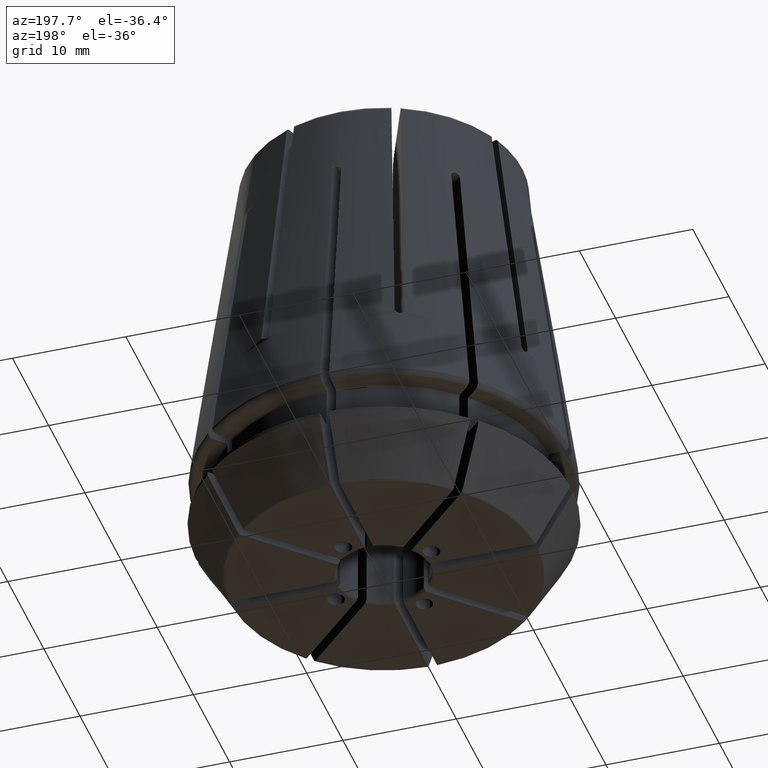
[diagram: clean part render]
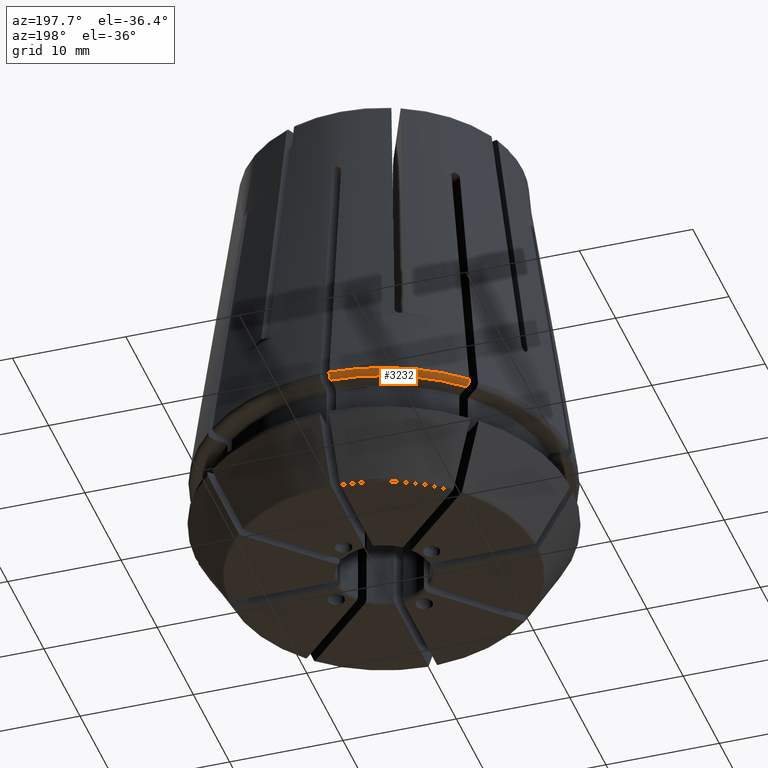
[diagram: same view with one face highlighted and labeled with its STEP entity id]
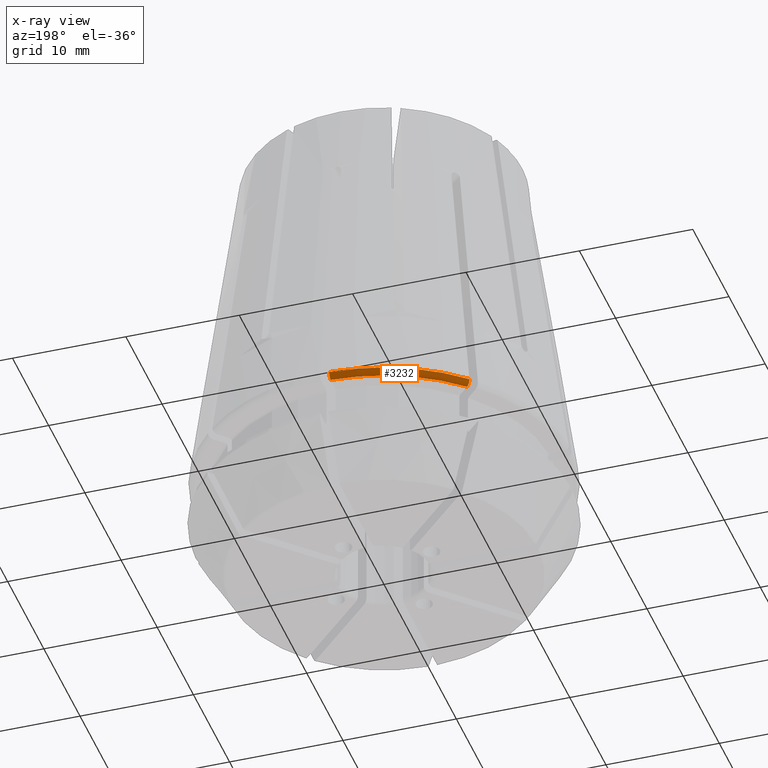
[diagram: x-ray of the same camera — body ghosted, the highlighted face saturated]
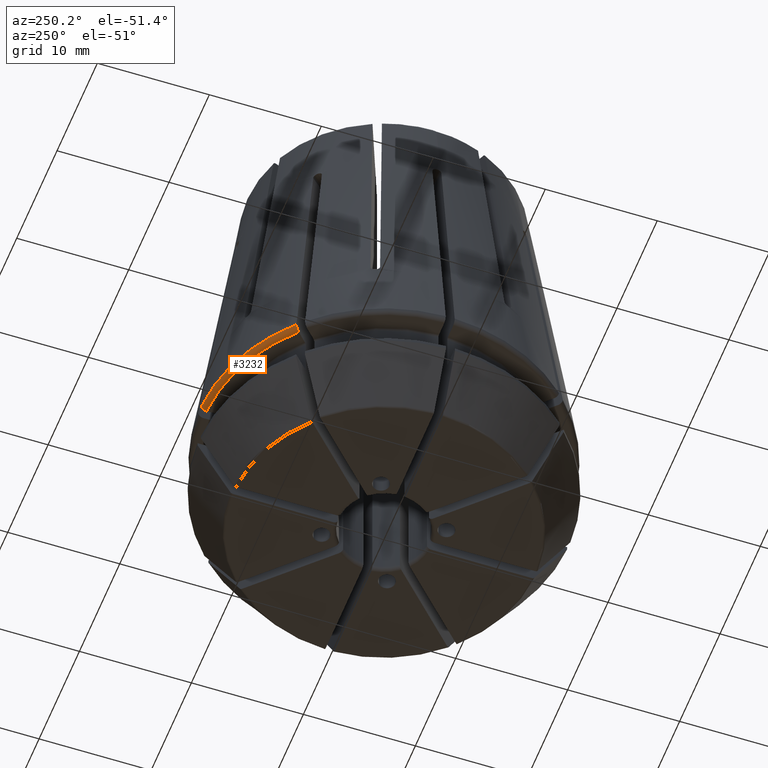
[diagram: same view with one face highlighted and labeled with its STEP entity id]
A machine part, auxiliary view. The second image highlights one B-rep face of the part: STEP entity #3232.
The next image is the same camera in x-ray: the body ghosted, the highlighted face saturated — about 0% of this face is hidden behind the body in this view.
A second angle (auxiliary view) of the same face is appended — the face is thin or edge-on in the first view.
In plain terms, the highlighted toroidal blend (fillet) surface has major radius 15.9823 mm and minor (blend) radius 0.45 mm.
Its self-contained STEP definition (entity closure, byte-faithful):
#512=B_SPLINE_CURVE_WITH_KNOTS('',3,(#5378,#5379,#5380,#5381),
 .UNSPECIFIED.,.F.,.F.,(4,4),(0.00076627681195305,0.00153231860263815),
 .UNSPECIFIED.);
#513=B_SPLINE_CURVE_WITH_KNOTS('',3,(#5382,#5383,#5384,#5385,#5386),
 .UNSPECIFIED.,.F.,.F.,(4,1,4),(0.000659496518193904,0.00104259664906279,
0.00142569677993167),.UNSPECIFIED.);
#867=ORIENTED_EDGE('',*,*,#1888,.T.);
#868=ORIENTED_EDGE('',*,*,#1903,.T.);
#869=ORIENTED_EDGE('',*,*,#1721,.F.);
#870=ORIENTED_EDGE('',*,*,#1904,.F.);
#1721=EDGE_CURVE('',#2253,#2254,#2589,.T.);
#1888=EDGE_CURVE('',#2397,#2395,#2637,.T.);
#1903=EDGE_CURVE('',#2395,#2254,#512,.T.);
#1904=EDGE_CURVE('',#2397,#2253,#513,.T.);
#2253=VERTEX_POINT('',#4761);
#2254=VERTEX_POINT('',#4763);
#2395=VERTEX_POINT('',#5334);
#2397=VERTEX_POINT('',#5337);
#2589=CIRCLE('',#3409,16.4279548476843);
#2637=CIRCLE('',#3478,15.9823342167505);
#2791=EDGE_LOOP('',(#867,#868,#869,#870));
#2979=FACE_BOUND('',#2791,.T.);
#3147=TOROIDAL_SURFACE('',#3488,15.9823342167505,0.45);
#3232=ADVANCED_FACE('',(#2979),#3147,.T.);
#3409=AXIS2_PLACEMENT_3D('',#4762,#3785,#3786);
#3478=AXIS2_PLACEMENT_3D('',#5336,#3972,#3973);
#3488=AXIS2_PLACEMENT_3D('',#5377,#3997,#3998);
#3785=DIRECTION('',(0.,0.,1.));
#3786=DIRECTION('',(1.,0.,0.));
#3972=DIRECTION('',(0.,0.,1.));
#3973=DIRECTION('',(1.,0.,0.));
#3997=DIRECTION('',(0.,0.,1.));
#3998=DIRECTION('',(1.,0.,0.));
#4761=CARTESIAN_POINT('',(-0.399999999999998,16.4230843777152,0.512627895432021));
#4762=CARTESIAN_POINT('',(0.,0.,0.512627895432022));
#4763=CARTESIAN_POINT('',(-11.3300316190066,11.8957170439559,0.512627895432021));
#5334=CARTESIAN_POINT('',(-11.0148341951006,11.5805196200498,0.));
#5336=CARTESIAN_POINT('',(0.,0.,0.));
#5337=CARTESIAN_POINT('',(-0.399999999999997,15.9773279060022,0.));
#5377=CARTESIAN_POINT('',(0.,0.,0.45));
#5378=CARTESIAN_POINT('',(-11.0148341951006,11.5805196200498,-2.01153458243218E-16));
#5379=CARTESIAN_POINT('',(-11.1972870238209,11.7629724487701,1.90888124335368E-15));
#5380=CARTESIAN_POINT('',(-11.3555293630787,11.9212147880279,0.256129028731963));
#5381=CARTESIAN_POINT('',(-11.3300316190066,11.8957170439559,0.512627895432023));
#5382=CARTESIAN_POINT('',(-0.399999999999998,15.9773279060022,-1.07512386526273E-14));
#5383=CARTESIAN_POINT('',(-0.399999999999998,16.1051595053317,-1.07512386526273E-14));
#5384=CARTESIAN_POINT('',(-0.399999999999998,16.3608091432897,0.116154104297687));
#5385=CARTESIAN_POINT('',(-0.399999999999998,16.4408663525952,0.386140081301622));
#5386=CARTESIAN_POINT('',(-0.399999999999998,16.4230843777152,0.512627895432023));